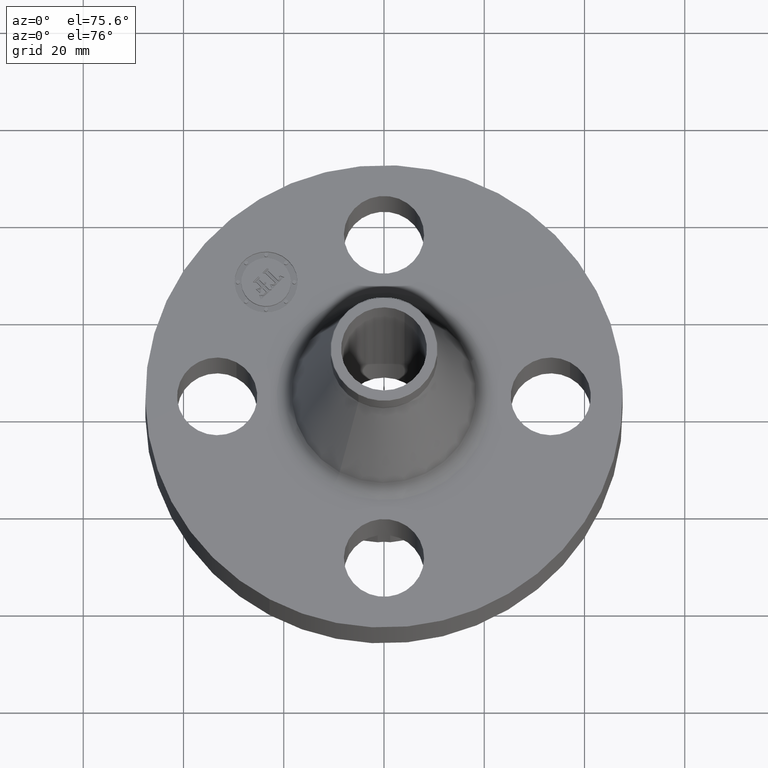
[diagram: clean part render]
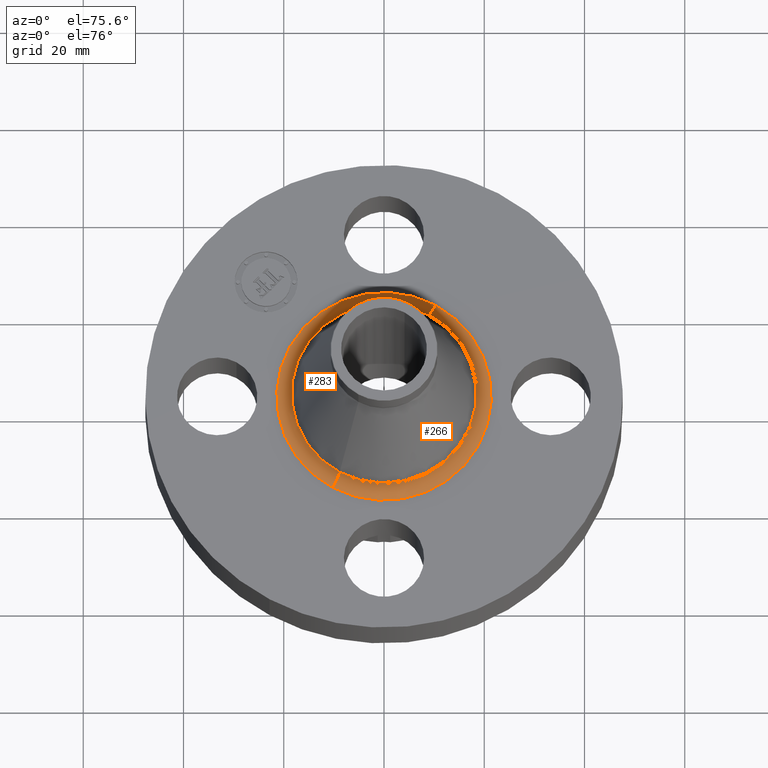
[diagram: same view with one multi-face feature highlighted, each face labeled with its STEP entity id]
A machine part, auxiliary view. The highlighted faces form ONE feature: a constant-radius fillet chain: 2 tangent blend faces with common blend radius 3.048 mm. The faces share edges in the B-rep.
Their STEP definitions:
[1] entity #283 (Torus):
#230=AXIS2_PLACEMENT_3D('Torus Axis2P3D',#227,#228,#229) ;
#243=AXIS2_PLACEMENT_3D('Circle Axis2P3D',#241,#242,$) ;
#257=AXIS2_PLACEMENT_3D('Circle Axis2P3D',#255,#256,$) ;
#269=AXIS2_PLACEMENT_3D('Circle Axis2P3D',#267,#268,$) ;
#274=AXIS2_PLACEMENT_3D('Circle Axis2P3D',#272,#273,$) ;
#227=CARTESIAN_POINT('Axis2P3D Location',(0.,0.,0.620000000002)) ;
#236=CARTESIAN_POINT('Vertex',(0.403977540723,0.739475928142,0.500000000002)) ;
#238=CARTESIAN_POINT('Vertex',(-0.403977540723,-0.739475928142,0.500000000002)) ;
#241=CARTESIAN_POINT('Axis2P3D Location',(0.403977540723,0.739475928142,0.620000000002)) ;
#245=CARTESIAN_POINT('Vertex',(0.348322139267,0.637599399129,0.589608403713)) ;
#252=CARTESIAN_POINT('Vertex',(-0.348322139267,-0.637599399129,0.589608403713)) ;
#255=CARTESIAN_POINT('Axis2P3D Location',(-0.403977540723,-0.739475928142,0.620000000002)) ;
#267=CARTESIAN_POINT('Axis2P3D Location',(0.,0.,0.500000000002)) ;
#272=CARTESIAN_POINT('Axis2P3D Location',(0.,0.,0.589608403713)) ;
#228=DIRECTION('Axis2P3D Direction',(0.,0.,-0.0393700787402)) ;
#229=DIRECTION('Axis2P3D XDirection',(-0.0188750212049,-0.0345504945626,0.)) ;
#242=DIRECTION('Axis2P3D Direction',(-0.0345504945626,0.0188750212049,0.)) ;
#256=DIRECTION('Axis2P3D Direction',(0.0345504945626,-0.0188750212049,0.)) ;
#268=DIRECTION('Axis2P3D Direction',(0.,0.,-0.0393700787402)) ;
#273=DIRECTION('Axis2P3D Direction',(0.,0.,-0.0393700787402)) ;
#278=ORIENTED_EDGE('',*,*,#271,.F.) ;
#279=ORIENTED_EDGE('',*,*,#259,.T.) ;
#280=ORIENTED_EDGE('',*,*,#276,.T.) ;
#281=ORIENTED_EDGE('',*,*,#247,.F.) ;
#283=ADVANCED_FACE('PartBody',(#282),#231,.F.) ;
#244=CIRCLE('generated circle',#243,0.12) ;
#258=CIRCLE('generated circle',#257,0.12) ;
#270=CIRCLE('generated circle',#269,0.84262832952) ;
#275=CIRCLE('generated circle',#274,0.726540643373) ;
#231=TOROIDAL_SURFACE('homeo Torus',#230,0.84262832952,0.12) ;
#247=EDGE_CURVE('',#237,#246,#244,.T.) ;
#259=EDGE_CURVE('',#239,#253,#258,.T.) ;
#271=EDGE_CURVE('',#239,#237,#270,.T.) ;
#276=EDGE_CURVE('',#253,#246,#275,.T.) ;
#277=EDGE_LOOP('',(#278,#279,#280,#281)) ;
#282=FACE_OUTER_BOUND('',#277,.T.) ;
#237=VERTEX_POINT('',#236) ;
#239=VERTEX_POINT('',#238) ;
#246=VERTEX_POINT('',#245) ;
#253=VERTEX_POINT('',#252) ;
[2] entity #266 (Torus):
#230=AXIS2_PLACEMENT_3D('Torus Axis2P3D',#227,#228,#229) ;
#234=AXIS2_PLACEMENT_3D('Circle Axis2P3D',#232,#233,$) ;
#243=AXIS2_PLACEMENT_3D('Circle Axis2P3D',#241,#242,$) ;
#250=AXIS2_PLACEMENT_3D('Circle Axis2P3D',#248,#249,$) ;
#257=AXIS2_PLACEMENT_3D('Circle Axis2P3D',#255,#256,$) ;
#227=CARTESIAN_POINT('Axis2P3D Location',(0.,0.,0.620000000002)) ;
#232=CARTESIAN_POINT('Axis2P3D Location',(0.,0.,0.500000000002)) ;
#236=CARTESIAN_POINT('Vertex',(0.403977540723,0.739475928142,0.500000000002)) ;
#238=CARTESIAN_POINT('Vertex',(-0.403977540723,-0.739475928142,0.500000000002)) ;
#241=CARTESIAN_POINT('Axis2P3D Location',(0.403977540723,0.739475928142,0.620000000002)) ;
#245=CARTESIAN_POINT('Vertex',(0.348322139267,0.637599399129,0.589608403713)) ;
#248=CARTESIAN_POINT('Axis2P3D Location',(0.,0.,0.589608403713)) ;
#252=CARTESIAN_POINT('Vertex',(-0.348322139267,-0.637599399129,0.589608403713)) ;
#255=CARTESIAN_POINT('Axis2P3D Location',(-0.403977540723,-0.739475928142,0.620000000002)) ;
#228=DIRECTION('Axis2P3D Direction',(0.,0.,-0.0393700787402)) ;
#229=DIRECTION('Axis2P3D XDirection',(-0.0188750212049,-0.0345504945626,0.)) ;
#233=DIRECTION('Axis2P3D Direction',(0.,0.,-0.0393700787402)) ;
#242=DIRECTION('Axis2P3D Direction',(-0.0345504945626,0.0188750212049,0.)) ;
#249=DIRECTION('Axis2P3D Direction',(0.,0.,-0.0393700787402)) ;
#256=DIRECTION('Axis2P3D Direction',(0.0345504945626,-0.0188750212049,0.)) ;
#261=ORIENTED_EDGE('',*,*,#240,.F.) ;
#262=ORIENTED_EDGE('',*,*,#247,.T.) ;
#263=ORIENTED_EDGE('',*,*,#254,.T.) ;
#264=ORIENTED_EDGE('',*,*,#259,.F.) ;
#266=ADVANCED_FACE('PartBody',(#265),#231,.F.) ;
#235=CIRCLE('generated circle',#234,0.84262832952) ;
#244=CIRCLE('generated circle',#243,0.12) ;
#251=CIRCLE('generated circle',#250,0.726540643373) ;
#258=CIRCLE('generated circle',#257,0.12) ;
#231=TOROIDAL_SURFACE('homeo Torus',#230,0.84262832952,0.12) ;
#240=EDGE_CURVE('',#237,#239,#235,.T.) ;
#247=EDGE_CURVE('',#237,#246,#244,.T.) ;
#254=EDGE_CURVE('',#246,#253,#251,.T.) ;
#259=EDGE_CURVE('',#239,#253,#258,.T.) ;
#260=EDGE_LOOP('',(#261,#262,#263,#264)) ;
#265=FACE_OUTER_BOUND('',#260,.T.) ;
#237=VERTEX_POINT('',#236) ;
#239=VERTEX_POINT('',#238) ;
#246=VERTEX_POINT('',#245) ;
#253=VERTEX_POINT('',#252) ;